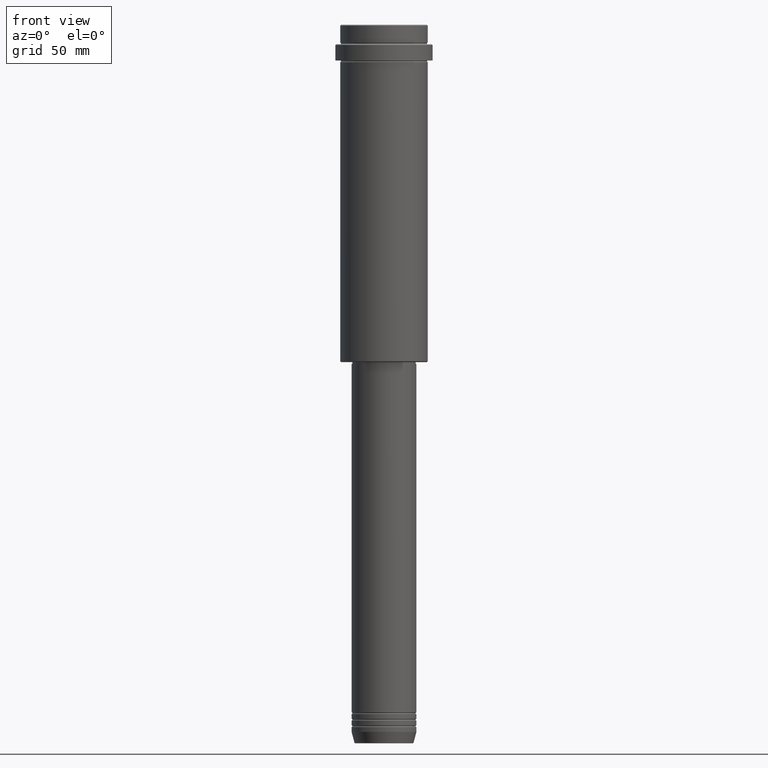
[diagram: clean part render]
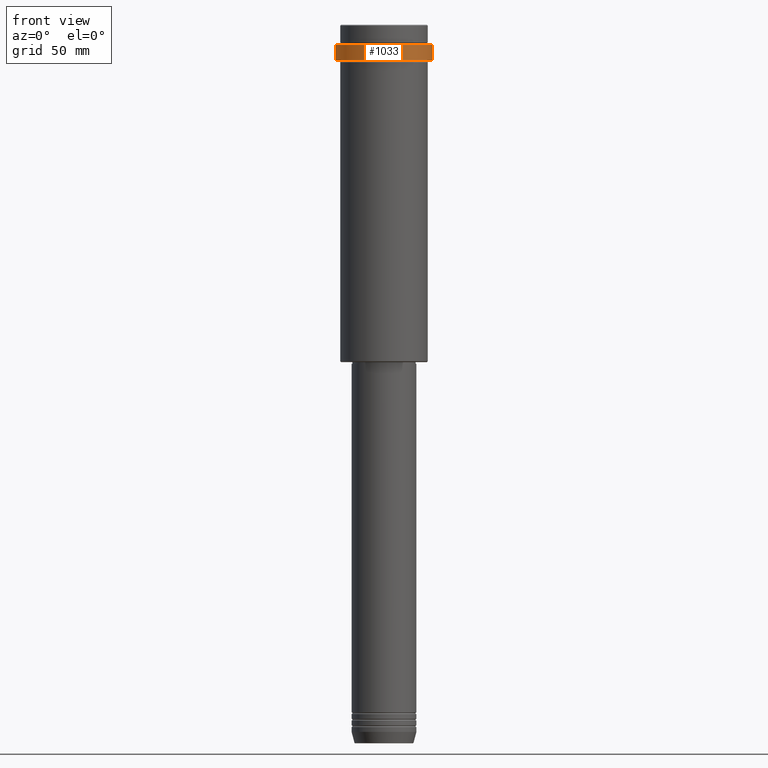
[diagram: same view with one face highlighted and labeled with its STEP entity id]
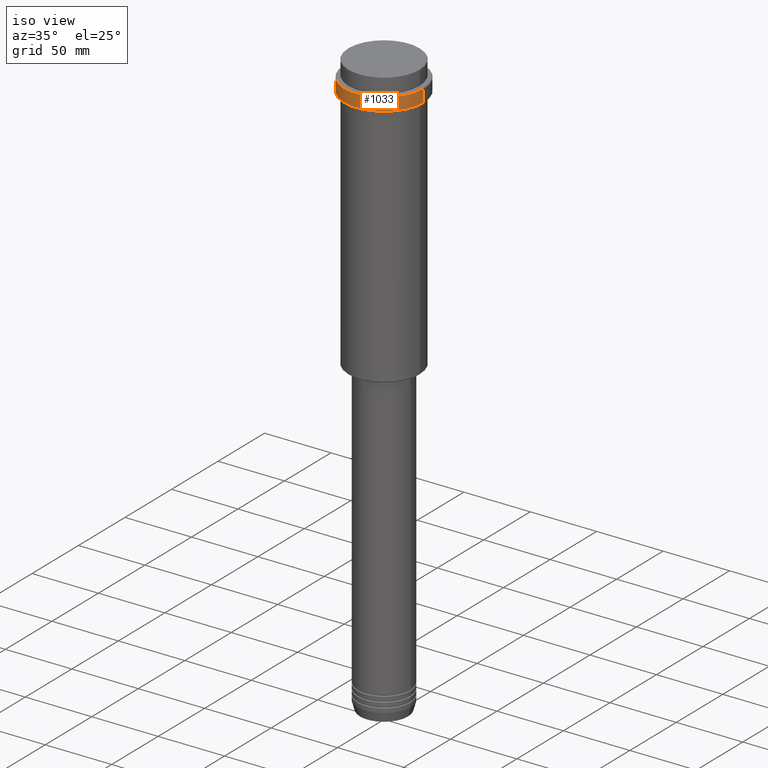
[diagram: same view with one face highlighted and labeled with its STEP entity id]
A machine part, front view. The second image highlights one B-rep face of the part: STEP entity #1033.
A second angle (iso view) of the same face is appended — the face is thin or edge-on in the first view.
In plain terms, the highlighted cylindrical surface (partial cylindrical patch) has radius 30 mm, axis along (-0, -0, 1).
Its self-contained STEP definition (entity closure, byte-faithful):
#37 = VECTOR ( 'NONE', #528, 1000.000000000000000 ) ;
#46 = DIRECTION ( 'NONE',  ( 1.000000000000000000, 0.000000000000000000, 0.000000000000000000 ) ) ;
#87 = LINE ( 'NONE', #968, #37 ) ;
#94 = CYLINDRICAL_SURFACE ( 'NONE', #744, 30.00000000000000000 ) ;
#99 = EDGE_CURVE ( 'NONE', #398, #1031, #745, .T. ) ;
#109 = DIRECTION ( 'NONE',  ( -0.000000000000000000, -0.000000000000000000, 1.000000000000000000 ) ) ;
#119 = AXIS2_PLACEMENT_3D ( 'NONE', #1255, #947, #46 ) ;
#262 = DIRECTION ( 'NONE',  ( -0.000000000000000000, -0.000000000000000000, 1.000000000000000000 ) ) ;
#316 = ORIENTED_EDGE ( 'NONE', *, *, #99, .T. ) ;
#322 = CARTESIAN_POINT ( 'NONE',  ( -30.00000000000000000, 3.673940397442059178E-15, -12.50000000000000888 ) ) ;
#345 = ORIENTED_EDGE ( 'NONE', *, *, #629, .T. ) ;
#398 = VERTEX_POINT ( 'NONE', #1363 ) ;
#443 = VERTEX_POINT ( 'NONE', #1185 ) ;
#528 = DIRECTION ( 'NONE',  ( -0.000000000000000000, -0.000000000000000000, 1.000000000000000000 ) ) ;
#629 = EDGE_CURVE ( 'NONE', #1141, #443, #998, .T. ) ;
#645 = DIRECTION ( 'NONE',  ( -0.000000000000000000, -0.000000000000000000, 1.000000000000000000 ) ) ;
#655 = AXIS2_PLACEMENT_3D ( 'NONE', #829, #262, #1365 ) ;
#666 = ORIENTED_EDGE ( 'NONE', *, *, #807, .F. ) ;
#686 = CARTESIAN_POINT ( 'NONE',  ( -29.99999999999999645, 3.673940397442058389E-15, -22.00000000000000355 ) ) ;
#744 = AXIS2_PLACEMENT_3D ( 'NONE', #979, #109, #766 ) ;
#745 = CIRCLE ( 'NONE', #119, 30.00000000000000000 ) ;
#766 = DIRECTION ( 'NONE',  ( 1.000000000000000000, 0.000000000000000000, 0.000000000000000000 ) ) ;
#807 = EDGE_CURVE ( 'NONE', #1141, #1031, #1170, .T. ) ;
#829 = CARTESIAN_POINT ( 'NONE',  ( 0.000000000000000000, 0.000000000000000000, -22.00000000000000355 ) ) ;
#928 = VECTOR ( 'NONE', #645, 1000.000000000000000 ) ;
#947 = DIRECTION ( 'NONE',  ( 0.000000000000000000, 0.000000000000000000, -1.000000000000000000 ) ) ;
#968 = CARTESIAN_POINT ( 'NONE',  ( 30.00000000000000000, 0.000000000000000000, 0.000000000000000000 ) ) ;
#979 = CARTESIAN_POINT ( 'NONE',  ( 0.000000000000000000, 0.000000000000000000, 0.000000000000000000 ) ) ;
#998 = CIRCLE ( 'NONE', #655, 29.99999999999999645 ) ;
#1010 = EDGE_LOOP ( 'NONE', ( #666, #345, #1306, #316 ) ) ;
#1031 = VERTEX_POINT ( 'NONE', #322 ) ;
#1033 = ADVANCED_FACE ( 'NONE', ( #1186 ), #94, .T. ) ;
#1141 = VERTEX_POINT ( 'NONE', #686 ) ;
#1170 = LINE ( 'NONE', #1180, #928 ) ;
#1180 = CARTESIAN_POINT ( 'NONE',  ( -30.00000000000000000, 3.673940397442059178E-15, 0.000000000000000000 ) ) ;
#1185 = CARTESIAN_POINT ( 'NONE',  ( 29.99999999999999645, 0.000000000000000000, -22.00000000000000355 ) ) ;
#1186 = FACE_OUTER_BOUND ( 'NONE', #1010, .T. ) ;
#1255 = CARTESIAN_POINT ( 'NONE',  ( 0.000000000000000000, 0.000000000000000000, -12.50000000000000888 ) ) ;
#1306 = ORIENTED_EDGE ( 'NONE', *, *, #1389, .T. ) ;
#1363 = CARTESIAN_POINT ( 'NONE',  ( 30.00000000000000000, 0.000000000000000000, -12.50000000000000888 ) ) ;
#1365 = DIRECTION ( 'NONE',  ( 1.000000000000000000, 0.000000000000000000, 0.000000000000000000 ) ) ;
#1389 = EDGE_CURVE ( 'NONE', #443, #398, #87, .T. ) ;